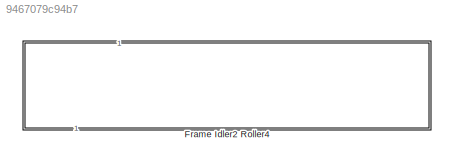
MODEL slx_9467079c94b7
KIND library
CONFIG SolverName = VariableStepAuto
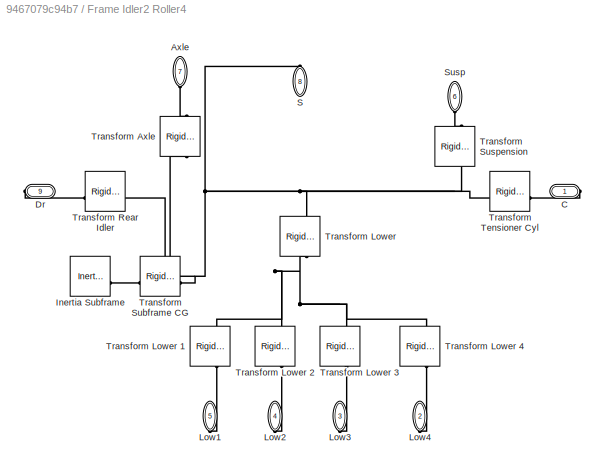
BLOCK [SubSystem] Frame Idler2 Roller4
  NameLocation = left
BLOCK [PMIOPort] Frame Idler2 Roller4/Axle
  NameLocation = left
  Port = 7
  Side = Left
BLOCK [PMIOPort] Frame Idler2 Roller4/C
  Side = Right
BLOCK [PMIOPort] Frame Idler2 Roller4/Dr
  Port = 9
  Side = Right
BLOCK [Reference] Frame Idler2 Roller4/Inertia Subframe   REF=sm_lib/Body Elements/Inertia
  SourceBlock = sm_lib/Body Elements/Inertia
  SourceType = Inertia
BLOCK [PMIOPort] Frame Idler2 Roller4/Low1
  NameLocation = left
  Port = 5
  Side = Right
BLOCK [PMIOPort] Frame Idler2 Roller4/Low2
  NameLocation = left
  Port = 4
  Side = Right
BLOCK [PMIOPort] Frame Idler2 Roller4/Low3
  NameLocation = left
  Port = 3
  Side = Right
BLOCK [PMIOPort] Frame Idler2 Roller4/Low4
  NameLocation = left
  Port = 2
  Side = Right
BLOCK [PMIOPort] Frame Idler2 Roller4/S
  NameLocation = left
  Port = 8
  Side = Right
BLOCK [PMIOPort] Frame Idler2 Roller4/Susp
  NameLocation = right
  Port = 6
  Side = Left
BLOCK [Reference] Frame Idler2 Roller4/Transform Axle  REF=sm_lib/Frames and
Transforms/Rigid
Transform
  NameLocation = left
  SourceBlock = sm_lib/Frames and\nTransforms/Rigid\nTransform
  SourceType = Rigid\nTransform
BLOCK [Reference] Frame Idler2 Roller4/Transform Lower  REF=sm_lib/Frames and
Transforms/Rigid
Transform
  NameLocation = left
  SourceBlock = sm_lib/Frames and\nTransforms/Rigid\nTransform
  SourceType = Rigid\nTransform
BLOCK [Reference] Frame Idler2 Roller4/Transform Lower 1  REF=sm_lib/Frames and
Transforms/Rigid
Transform
  SourceBlock = sm_lib/Frames and\nTransforms/Rigid\nTransform
  SourceType = Rigid\nTransform
BLOCK [Reference] Frame Idler2 Roller4/Transform Lower 2  REF=sm_lib/Frames and
Transforms/Rigid
Transform
  SourceBlock = sm_lib/Frames and\nTransforms/Rigid\nTransform
  SourceType = Rigid\nTransform
BLOCK [Reference] Frame Idler2 Roller4/Transform Lower 3  REF=sm_lib/Frames and
Transforms/Rigid
Transform
  SourceBlock = sm_lib/Frames and\nTransforms/Rigid\nTransform
  SourceType = Rigid\nTransform
BLOCK [Reference] Frame Idler2 Roller4/Transform Lower 4  REF=sm_lib/Frames and
Transforms/Rigid
Transform
  SourceBlock = sm_lib/Frames and\nTransforms/Rigid\nTransform
  SourceType = Rigid\nTransform
BLOCK [Reference] Frame Idler2 Roller4/Transform Rear Idler  REF=sm_lib/Frames and
Transforms/Rigid
Transform
  SourceBlock = sm_lib/Frames and\nTransforms/Rigid\nTransform
  SourceType = Rigid\nTransform
BLOCK [Reference] Frame Idler2 Roller4/Transform Subframe CG  REF=sm_lib/Frames and
Transforms/Rigid
Transform
  SourceBlock = sm_lib/Frames and\nTransforms/Rigid\nTransform
  SourceType = Rigid\nTransform
BLOCK [Reference] Frame Idler2 Roller4/Transform Suspension  REF=sm_lib/Frames and
Transforms/Rigid
Transform
  NameLocation = left
  SourceBlock = sm_lib/Frames and\nTransforms/Rigid\nTransform
  SourceType = Rigid\nTransform
BLOCK [Reference] Frame Idler2 Roller4/Transform Tensioner Cyl  REF=sm_lib/Frames and
Transforms/Rigid
Transform
  SourceBlock = sm_lib/Frames and\nTransforms/Rigid\nTransform
  SourceType = Rigid\nTransform
PLINE Frame Idler2 Roller4/Axle:RConn1 -- Frame Idler2 Roller4/Transform Axle:RConn1
PLINE Frame Idler2 Roller4/C:RConn1 -- Frame Idler2 Roller4/Transform Tensioner Cyl:RConn1
PLINE Frame Idler2 Roller4/Dr:RConn1 -- Frame Idler2 Roller4/Transform Rear Idler:RConn1
PLINE Frame Idler2 Roller4/Inertia Subframe :RConn1 -- Frame Idler2 Roller4/Transform Subframe CG:RConn1
PLINE Frame Idler2 Roller4/Low1:RConn1 -- Frame Idler2 Roller4/Transform Lower 1:RConn1
PLINE Frame Idler2 Roller4/Low2:RConn1 -- Frame Idler2 Roller4/Transform Lower 2:RConn1
PLINE Frame Idler2 Roller4/Low3:RConn1 -- Frame Idler2 Roller4/Transform Lower 3:RConn1
PLINE Frame Idler2 Roller4/Low4:RConn1 -- Frame Idler2 Roller4/Transform Lower 4:RConn1
PNET net1: Frame Idler2 Roller4/S:RConn1 -- Frame Idler2 Roller4/Transform Axle:LConn1 -- Frame Idler2 Roller4/Transform Lower:LConn1 -- Frame Idler2 Roller4/Transform Rear Idler:LConn1 -- Frame Idler2 Roller4/Transform Subframe CG:LConn1 -- Frame Idler2 Roller4/Transform Suspension:LConn1 -- Frame Idler2 Roller4/Transform Tensioner Cyl:LConn1
PLINE Frame Idler2 Roller4/Susp:RConn1 -- Frame Idler2 Roller4/Transform Suspension:RConn1
PNET net2: Frame Idler2 Roller4/Transform Lower 1:LConn1 -- Frame Idler2 Roller4/Transform Lower 2:LConn1 -- Frame Idler2 Roller4/Transform Lower 3:LConn1 -- Frame Idler2 Roller4/Transform Lower 4:LConn1 -- Frame Idler2 Roller4/Transform Lower:RConn1
note: PNET lines group multi-terminal physical nets as a canonical sorted terminal list (undirected conserving connections); 2-terminal nets keep the pairwise PLINE form
